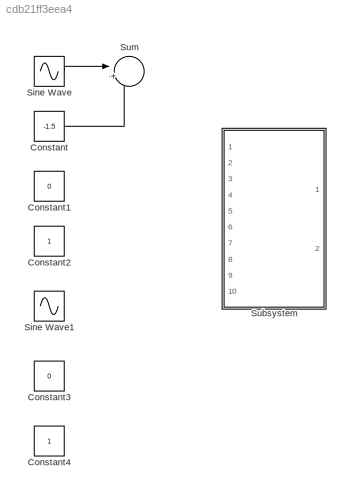
MODEL slx_cdb21ff3eea4
KIND model
CONFIG AbsTol = auto
CONFIG FixedStep = auto
CONFIG MaxStep = auto
CONFIG MinStep = auto
CONFIG RelTol = 1e-3
CONFIG SampleTimeConstraint = Unconstrained
CONFIG Solver = ode45
CONFIG SolverMode = Auto
CONFIG SolverName = ode45
CONFIG StartTime = 0.0
CONFIG StopTime = 10.0
BLOCK [Constant] Constant
  Value = -1.5
BLOCK [Constant] Constant1
  Value = 0
BLOCK [Constant] Constant2
BLOCK [Constant] Constant3
  Value = 0
BLOCK [Constant] Constant4
BLOCK [Sin] Sine Wave
  Amplitude = 0.1
  Frequency = 3.14
  Ports = [0, 1]
  SampleTime = 0
BLOCK [Sin] Sine Wave1
  Amplitude = 0.1
  Frequency = 3.14
  Ports = [0, 1]
  SampleTime = 0
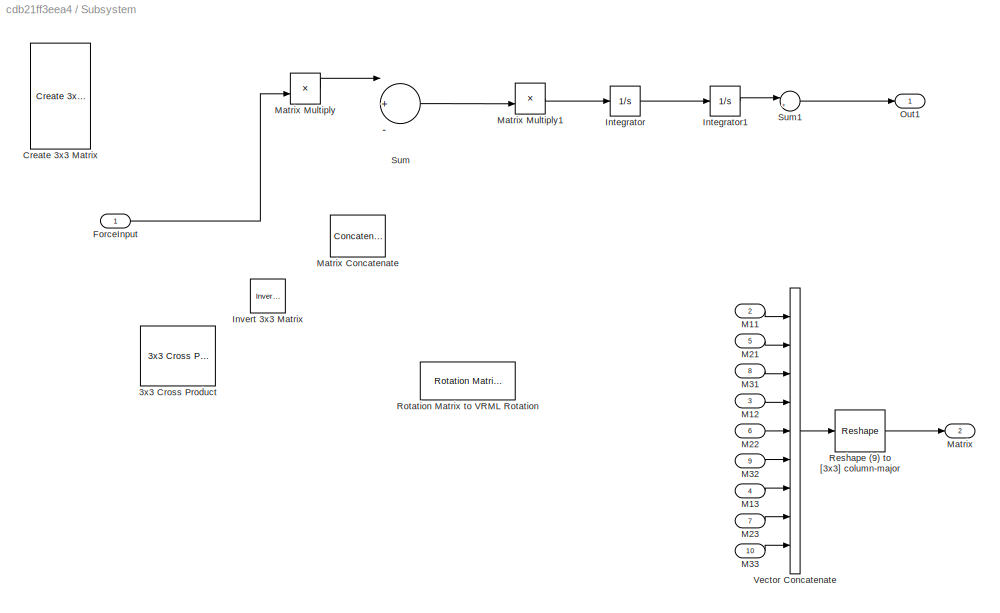
BLOCK [SubSystem] Subsystem
  Ports = [10, 2]
  RequestExecContextInheritance = off
BLOCK [Reference] Subsystem/3x3 Cross Product  REF=aerolibutil/3x3 Cross Product
  Ports = [2, 1]
  SourceBlock = aerolibutil/3x3 Cross Product
  SourceType = CrossProduct
BLOCK [Reference] Subsystem/Create 3x3 Matrix  REF=aerolibutil/Create 3x3 Matrix
  Ports = [9, 1]
  SourceBlock = aerolibutil/Create 3x3 Matrix
  SourceType = Create 3x3 Matrix
BLOCK [Inport] Subsystem/ForceInput
  IconDisplay = Port number
BLOCK [Integrator] Subsystem/Integrator
  Ports = [1, 1]
BLOCK [Integrator] Subsystem/Integrator1
  Ports = [1, 1]
BLOCK [Reference] Subsystem/Invert 3x3 Matrix  REF=aerolibutil/Invert 
3x3 Matrix
  Ports = [1, 1]
  SourceBlock = aerolibutil/Invert \n3x3 Matrix
  SourceType = Invert 3x3 Matrix
BLOCK [Inport] Subsystem/M11
  IconDisplay = Port number
  Port = 2
  PortDimensions = 1
BLOCK [Inport] Subsystem/M12
  IconDisplay = Port number
  Port = 3
  PortDimensions = 1
BLOCK [Inport] Subsystem/M13
  IconDisplay = Port number
  Port = 4
  PortDimensions = 1
BLOCK [Inport] Subsystem/M21
  IconDisplay = Port number
  Port = 5
  PortDimensions = 1
BLOCK [Inport] Subsystem/M22
  IconDisplay = Port number
  Port = 6
  PortDimensions = 1
BLOCK [Inport] Subsystem/M23
  IconDisplay = Port number
  Port = 7
  PortDimensions = 1
BLOCK [Inport] Subsystem/M31
  IconDisplay = Port number
  Port = 8
  PortDimensions = 1
BLOCK [Inport] Subsystem/M32
  IconDisplay = Port number
  Port = 9
  PortDimensions = 1
BLOCK [Inport] Subsystem/M33
  IconDisplay = Port number
  Port = 10
  PortDimensions = 1
BLOCK [Outport] Subsystem/Matrix
  IconDisplay = Port number
  Port = 2
  PortDimensions = [3 3]
BLOCK [Concatenate] Subsystem/Matrix Concatenate
  ConcatenateDimension = 2
  Mode = Multidimensional array
  Ports = [2, 1]
BLOCK [Product] Subsystem/Matrix Multiply
  InputSameDT = off
  OutDataTypeStr = Inherit: Inherit via internal rule
  Ports = [2, 1]
  RndMeth = Floor
  SaturateOnIntegerOverflow = off
BLOCK [Product] Subsystem/Matrix Multiply1
  InputSameDT = off
  OutDataTypeStr = Inherit: Inherit via internal rule
  Ports = [2, 1]
  RndMeth = Floor
  SaturateOnIntegerOverflow = off
BLOCK [Outport] Subsystem/Out1
  IconDisplay = Port number
BLOCK [Reshape] Subsystem/Reshape (9) to [3x3] column-major
  OutputDimensionality = Customize
  OutputDimensions = [3,3]
  Ports = [1, 1]
BLOCK [Reference] Subsystem/Rotation Matrix to VRML Rotation  REF=vrlib/Utilities/Rotation Matrix
to VRML Rotation
  Ports = [1, 1]
  SourceBlock = vrlib/Utilities/Rotation Matrix\nto VRML Rotation
  SourceType = Rotation Matrix to VRML Rotation
  maxzero = 1e-12
BLOCK [Sum] Subsystem/Sum
  InputSameDT = off
  Inputs = |+--
  OutDataTypeStr = Inherit: Inherit via internal rule
  Ports = [3, 1]
  SaturateOnIntegerOverflow = off
BLOCK [Sum] Subsystem/Sum1
  IconShape = round
  InputSameDT = off
  Inputs = |++
  OutDataTypeStr = Inherit: Inherit via internal rule
  Ports = [2, 1]
  SaturateOnIntegerOverflow = off
BLOCK [Concatenate] Subsystem/Vector Concatenate
  NumInputs = 9
  Ports = [9, 1]
BLOCK [Sum] Sum
  IconShape = round
  InputSameDT = off
  Inputs = |++
  OutDataTypeStr = Inherit: Inherit via internal rule
  Ports = [2, 1]
  SaturateOnIntegerOverflow = off
LINE Constant:1 -> Sum:2
LINE Sine Wave:1 -> Sum:1
LINE Subsystem/ForceInput:1 -> Subsystem/Matrix Multiply:2
LINE Subsystem/Integrator1:1 -> Subsystem/Sum1:1
LINE Subsystem/Integrator:1 -> Subsystem/Integrator1:1
LINE Subsystem/M11:1 -> Subsystem/Vector Concatenate:1
LINE Subsystem/M12:1 -> Subsystem/Vector Concatenate:4
LINE Subsystem/M13:1 -> Subsystem/Vector Concatenate:7
LINE Subsystem/M21:1 -> Subsystem/Vector Concatenate:2
LINE Subsystem/M22:1 -> Subsystem/Vector Concatenate:5
LINE Subsystem/M23:1 -> Subsystem/Vector Concatenate:8
LINE Subsystem/M31:1 -> Subsystem/Vector Concatenate:3
LINE Subsystem/M32:1 -> Subsystem/Vector Concatenate:6
LINE Subsystem/M33:1 -> Subsystem/Vector Concatenate:9
LINE Subsystem/Matrix Multiply1:1 -> Subsystem/Integrator:1
LINE Subsystem/Matrix Multiply:1 -> Subsystem/Sum:1
LINE Subsystem/Reshape (9) to [3x3] column-major:1 -> Subsystem/Matrix:1
LINE Subsystem/Sum1:1 -> Subsystem/Out1:1
LINE Subsystem/Sum:1 -> Subsystem/Matrix Multiply1:2
LINE Subsystem/Vector Concatenate:1 -> Subsystem/Reshape (9) to [3x3] column-major:1
